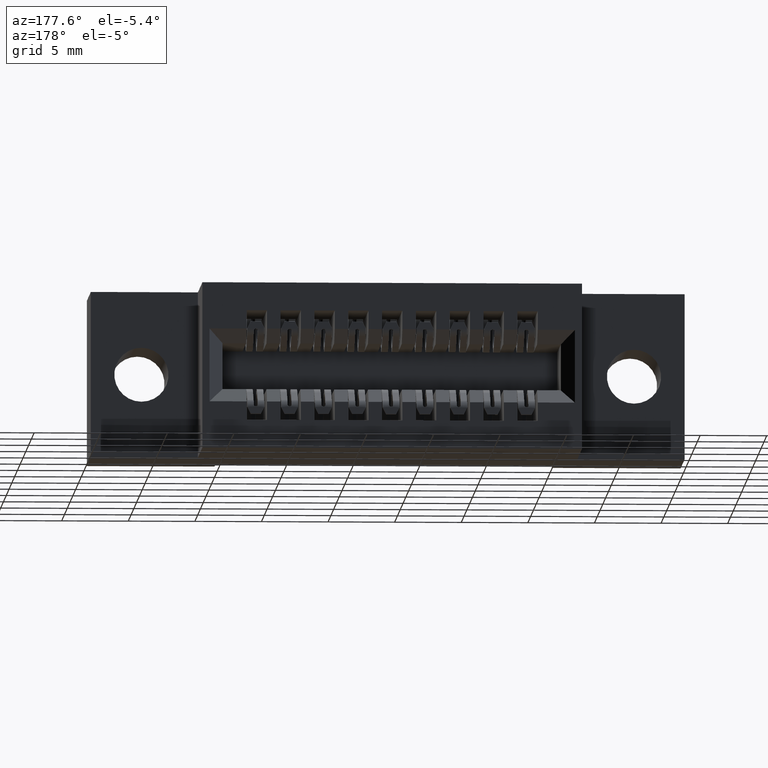
[diagram: clean part render]
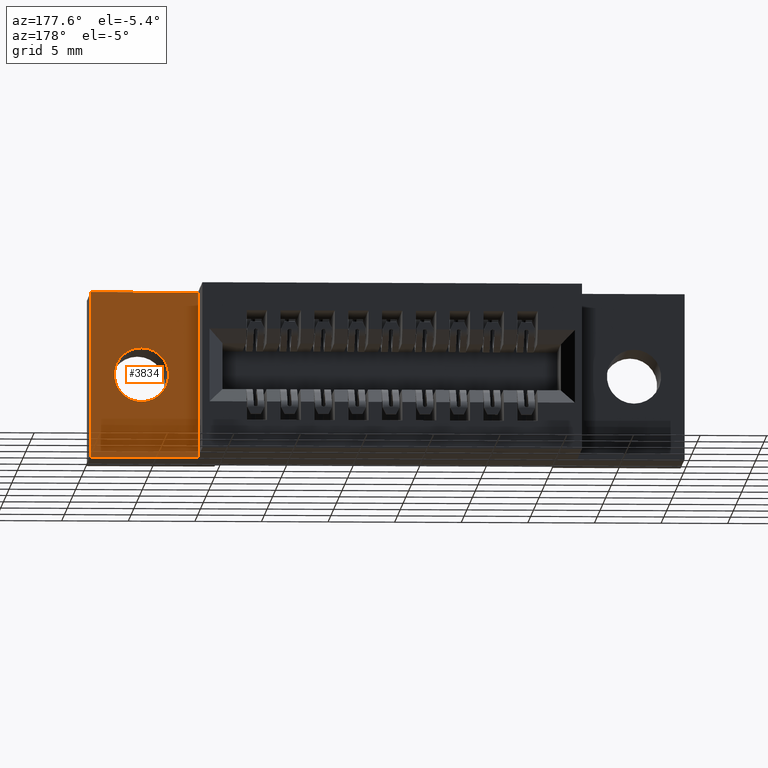
[diagram: same view with one face highlighted and labeled with its STEP entity id]
A machine part, auxiliary view. The second image highlights one B-rep face of the part: STEP entity #3834.
In plain terms, the highlighted planar face has unit normal (0, 1, 0).
Its self-contained STEP definition (entity closure, byte-faithful):
#138 = CARTESIAN_POINT ( 'NONE',  ( 1.605500000000000400, 0.2799999999999999700, -0.2450000000000001600 ) ) ;
#190 = VERTEX_POINT ( 'NONE', #4848 ) ;
#236 = CIRCLE ( 'NONE', #6107, 0.08000000000000000200 ) ;
#478 = EDGE_CURVE ( 'NONE', #2498, #7938, #10007, .T. ) ;
#628 = LINE ( 'NONE', #6523, #4528 ) ;
#779 = EDGE_CURVE ( 'NONE', #3580, #2498, #628, .T. ) ;
#859 = DIRECTION ( 'NONE',  ( 0.0000000000000000000, 0.0000000000000000000, -1.000000000000000000 ) ) ;
#1444 = LINE ( 'NONE', #6536, #5245 ) ;
#1482 = PLANE ( 'NONE',  #8586 ) ;
#1515 = CARTESIAN_POINT ( 'NONE',  ( 1.438500000000000300, 0.2799999999999999700, -0.4899999999999998800 ) ) ;
#1662 = FACE_BOUND ( 'NONE', #5340, .T. ) ;
#1796 = EDGE_CURVE ( 'NONE', #3602, #3580, #1444, .T. ) ;
#1898 = VERTEX_POINT ( 'NONE', #8899 ) ;
#1978 = ORIENTED_EDGE ( 'NONE', *, *, #8938, .T. ) ;
#2054 = CARTESIAN_POINT ( 'NONE',  ( 1.754999999999999900, 0.2799999999999999700, -0.4899999999999999900 ) ) ;
#2063 = ORIENTED_EDGE ( 'NONE', *, *, #779, .T. ) ;
#2244 = CARTESIAN_POINT ( 'NONE',  ( 1.438500000000000300, 0.2799999999999999700, -0.4899999999999998800 ) ) ;
#2498 = VERTEX_POINT ( 'NONE', #7660 ) ;
#2539 = ORIENTED_EDGE ( 'NONE', *, *, #478, .T. ) ;
#2942 = DIRECTION ( 'NONE',  ( 0.0000000000000000000, 0.0000000000000000000, 1.000000000000000000 ) ) ;
#3271 = EDGE_CURVE ( 'NONE', #190, #1898, #236, .T. ) ;
#3278 = AXIS2_PLACEMENT_3D ( 'NONE', #138, #5626, #859 ) ;
#3580 = VERTEX_POINT ( 'NONE', #2054 ) ;
#3602 = VERTEX_POINT ( 'NONE', #4371 ) ;
#3813 = DIRECTION ( 'NONE',  ( 0.0000000000000000000, 1.000000000000000000, -0.0000000000000000000 ) ) ;
#3834 = ADVANCED_FACE ( 'NONE', ( #1662, #7870 ), #1482, .T. ) ;
#4366 = EDGE_LOOP ( 'NONE', ( #2063, #2539, #1978, #8021 ) ) ;
#4371 = CARTESIAN_POINT ( 'NONE',  ( 1.754999999999999900, 0.2799999999999999700, 0.0000000000000000000 ) ) ;
#4528 = VECTOR ( 'NONE', #9768, 39.37007874015748100 ) ;
#4848 = CARTESIAN_POINT ( 'NONE',  ( 1.605500000000000400, 0.2799999999999999700, -0.1650000000000001500 ) ) ;
#5153 = EDGE_CURVE ( 'NONE', #1898, #190, #8470, .T. ) ;
#5166 = DIRECTION ( 'NONE',  ( 0.0000000000000000000, 1.000000000000000000, -0.0000000000000000000 ) ) ;
#5245 = VECTOR ( 'NONE', #8087, 39.37007874015748100 ) ;
#5340 = EDGE_LOOP ( 'NONE', ( #9159, #9763 ) ) ;
#5626 = DIRECTION ( 'NONE',  ( 0.0000000000000000000, 1.000000000000000000, -0.0000000000000000000 ) ) ;
#5910 = CARTESIAN_POINT ( 'NONE',  ( 1.754999999999999900, 0.2799999999999999700, 0.0000000000000000000 ) ) ;
#6107 = AXIS2_PLACEMENT_3D ( 'NONE', #7426, #5166, #8290 ) ;
#6523 = CARTESIAN_POINT ( 'NONE',  ( 1.754999999999999900, 0.2799999999999999700, -0.4899999999999999900 ) ) ;
#6536 = CARTESIAN_POINT ( 'NONE',  ( 1.754999999999999900, 0.2799999999999999700, -0.4899999999999999900 ) ) ;
#6791 = CARTESIAN_POINT ( 'NONE',  ( 1.438500000000000300, 0.2799999999999999700, -1.567854064608399300E-016 ) ) ;
#7083 = VECTOR ( 'NONE', #2942, 39.37007874015748100 ) ;
#7426 = CARTESIAN_POINT ( 'NONE',  ( 1.605500000000000400, 0.2799999999999999700, -0.2450000000000001600 ) ) ;
#7660 = CARTESIAN_POINT ( 'NONE',  ( 1.438500000000000300, 0.2799999999999999700, -0.4899999999999998800 ) ) ;
#7870 = FACE_OUTER_BOUND ( 'NONE', #4366, .T. ) ;
#7938 = VERTEX_POINT ( 'NONE', #6791 ) ;
#8021 = ORIENTED_EDGE ( 'NONE', *, *, #1796, .T. ) ;
#8087 = DIRECTION ( 'NONE',  ( -0.0000000000000000000, -0.0000000000000000000, -1.000000000000000000 ) ) ;
#8290 = DIRECTION ( 'NONE',  ( 0.0000000000000000000, 0.0000000000000000000, -1.000000000000000000 ) ) ;
#8382 = VECTOR ( 'NONE', #8953, 39.37007874015748100 ) ;
#8470 = CIRCLE ( 'NONE', #3278, 0.08000000000000000200 ) ;
#8503 = LINE ( 'NONE', #5910, #8382 ) ;
#8586 = AXIS2_PLACEMENT_3D ( 'NONE', #1515, #3813, #9314 ) ;
#8899 = CARTESIAN_POINT ( 'NONE',  ( 1.605500000000000400, 0.2799999999999999700, -0.3250000000000001800 ) ) ;
#8938 = EDGE_CURVE ( 'NONE', #7938, #3602, #8503, .T. ) ;
#8953 = DIRECTION ( 'NONE',  ( 1.000000000000000000, -0.0000000000000000000, 4.953725322617379100E-016 ) ) ;
#9159 = ORIENTED_EDGE ( 'NONE', *, *, #3271, .F. ) ;
#9314 = DIRECTION ( 'NONE',  ( 0.0000000000000000000, 0.0000000000000000000, 1.000000000000000000 ) ) ;
#9763 = ORIENTED_EDGE ( 'NONE', *, *, #5153, .F. ) ;
#9768 = DIRECTION ( 'NONE',  ( -1.000000000000000000, 0.0000000000000000000, 2.157857814900683400E-016 ) ) ;
#10007 = LINE ( 'NONE', #2244, #7083 ) ;